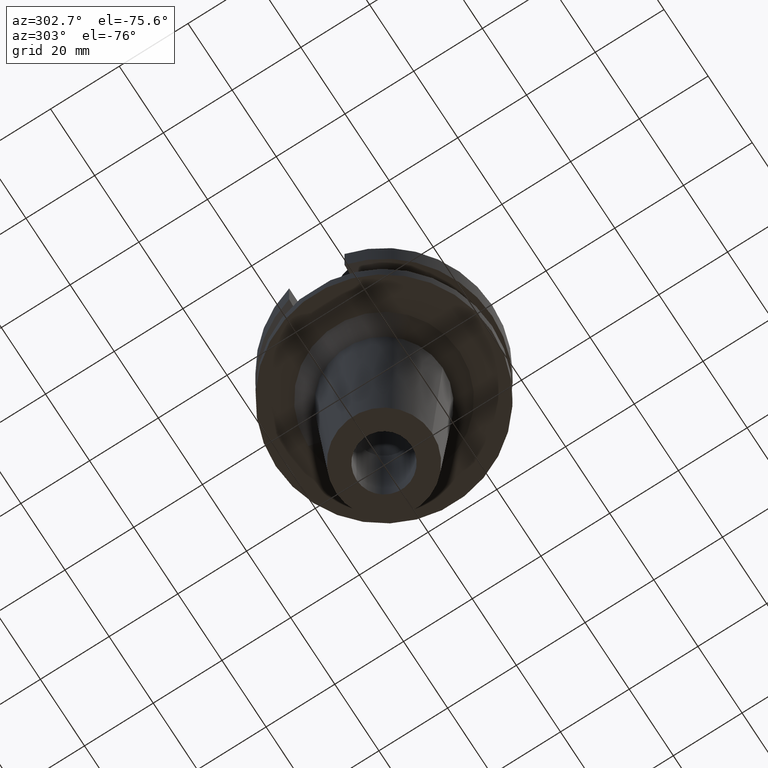
[diagram: clean part render]
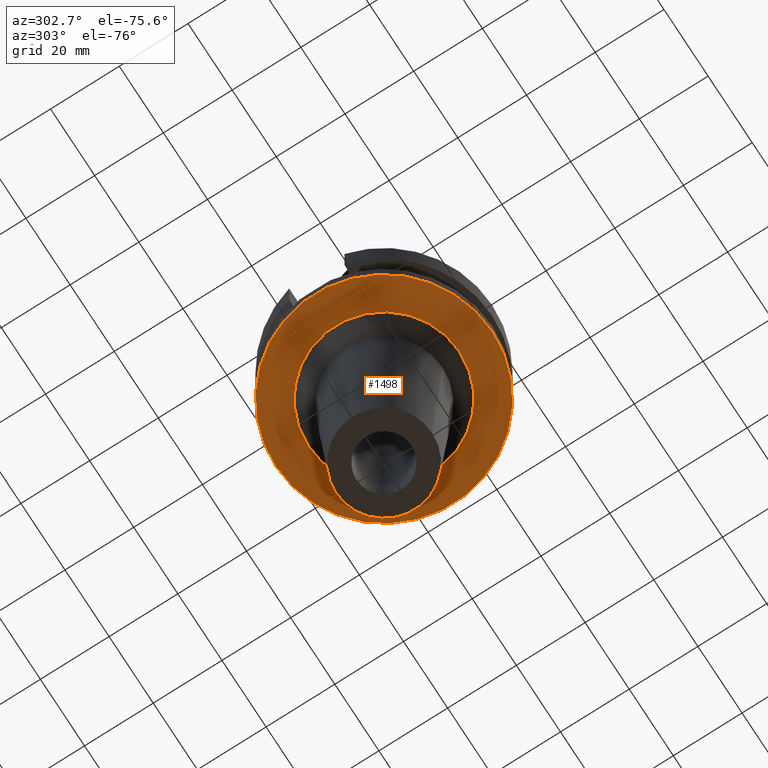
[diagram: same view with one face highlighted and labeled with its STEP entity id]
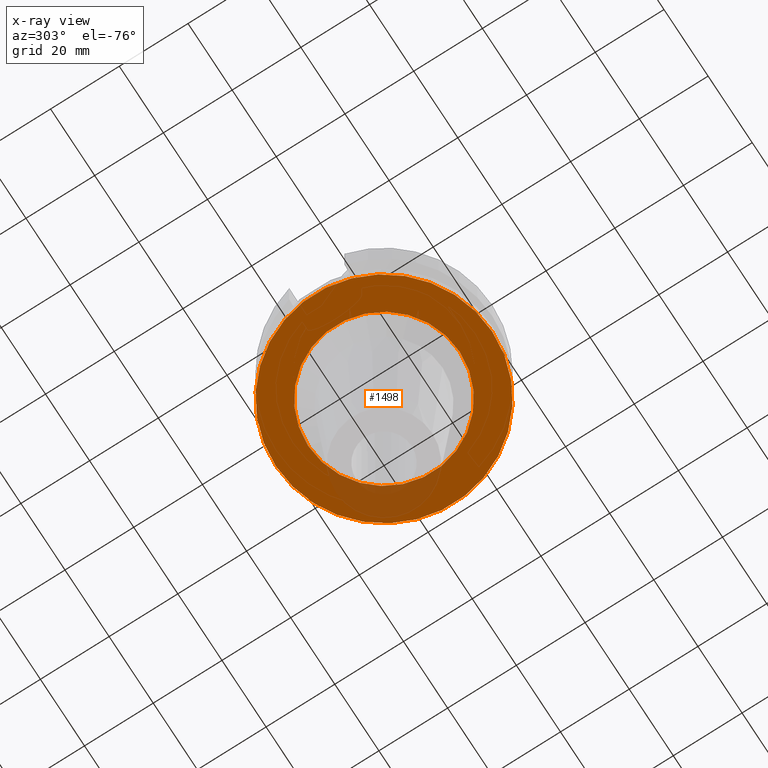
[diagram: x-ray of the same camera — body ghosted, the highlighted face saturated]
A machine part, auxiliary view. The second image highlights one B-rep face of the part: STEP entity #1498.
The next image is the same camera in x-ray: the body ghosted, the highlighted face saturated — about 12% of this face is hidden behind the body in this view.
In plain terms, the highlighted planar face has unit normal (0, 0, -1).
Its self-contained STEP definition (entity closure, byte-faithful):
#629=CARTESIAN_POINT('',(0.E0,2.120720862083E-14,-2.7E1));
#630=DIRECTION('',(0.E0,0.E0,1.E0));
#631=DIRECTION('',(0.E0,-1.E0,0.E0));
#632=AXIS2_PLACEMENT_3D('',#629,#630,#631);
#637=CARTESIAN_POINT('',(0.E0,2.120720862083E-14,-2.7E1));
#638=DIRECTION('',(0.E0,0.E0,1.E0));
#639=DIRECTION('',(0.E0,1.E0,0.E0));
#640=AXIS2_PLACEMENT_3D('',#637,#638,#639);
#645=CARTESIAN_POINT('',(0.E0,0.E0,-2.7E1));
#646=DIRECTION('',(0.E0,0.E0,-1.E0));
#647=DIRECTION('',(0.E0,-1.E0,0.E0));
#648=AXIS2_PLACEMENT_3D('',#645,#646,#647);
#653=CARTESIAN_POINT('',(0.E0,0.E0,-2.7E1));
#654=DIRECTION('',(0.E0,0.E0,-1.E0));
#655=DIRECTION('',(0.E0,1.E0,0.E0));
#656=AXIS2_PLACEMENT_3D('',#653,#654,#655);
#967=CARTESIAN_POINT('',(0.E0,2.203965119842E1,-2.7E1));
#968=VERTEX_POINT('',#967);
#969=CARTESIAN_POINT('',(0.E0,-2.203965119842E1,-2.7E1));
#970=VERTEX_POINT('',#969);
#971=CARTESIAN_POINT('',(0.E0,-3.15E1,-2.7E1));
#972=CARTESIAN_POINT('',(0.E0,3.15E1,-2.7E1));
#973=VERTEX_POINT('',#971);
#974=VERTEX_POINT('',#972);
#1483=CARTESIAN_POINT('',(0.E0,0.E0,-2.7E1));
#1484=DIRECTION('',(0.E0,0.E0,-1.E0));
#1485=DIRECTION('',(0.E0,-1.E0,0.E0));
#1486=AXIS2_PLACEMENT_3D('',#1483,#1484,#1485);
#1487=PLANE('',#1486);
#1488=ORIENTED_EDGE('',*,*,#1445,.T.);
#1489=ORIENTED_EDGE('',*,*,#1476,.T.);
#1490=EDGE_LOOP('',(#1488,#1489));
#1491=FACE_OUTER_BOUND('',#1490,.F.);
#1493=ORIENTED_EDGE('',*,*,#1492,.T.);
#1495=ORIENTED_EDGE('',*,*,#1494,.T.);
#1496=EDGE_LOOP('',(#1493,#1495));
#1497=FACE_BOUND('',#1496,.F.);
#633=CIRCLE('',#632,3.15E1);
#641=CIRCLE('',#640,3.15E1);
#649=CIRCLE('',#648,2.203965119842E1);
#657=CIRCLE('',#656,2.203965119842E1);
#1445=EDGE_CURVE('',#973,#974,#633,.T.);
#1476=EDGE_CURVE('',#974,#973,#641,.T.);
#1492=EDGE_CURVE('',#970,#968,#649,.T.);
#1494=EDGE_CURVE('',#968,#970,#657,.T.);
#1498=ADVANCED_FACE('',(#1491,#1497),#1487,.T.);